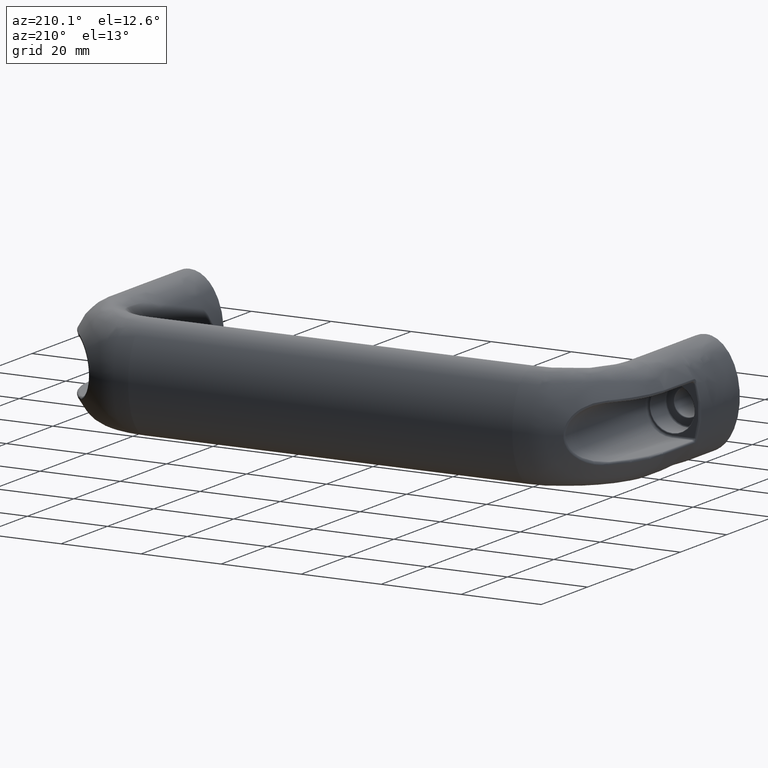
[diagram: clean part render]
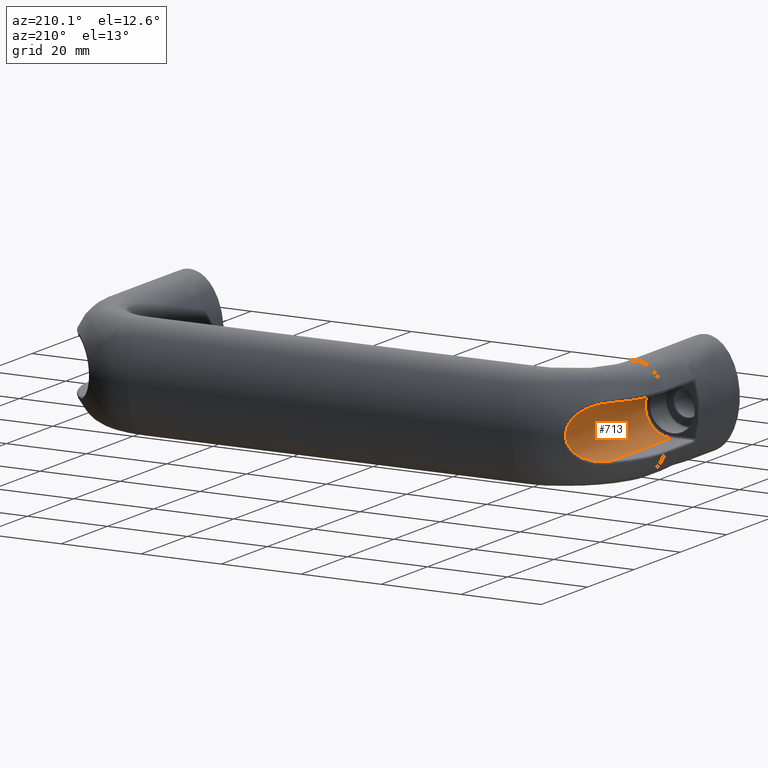
[diagram: same view with one face highlighted and labeled with its STEP entity id]
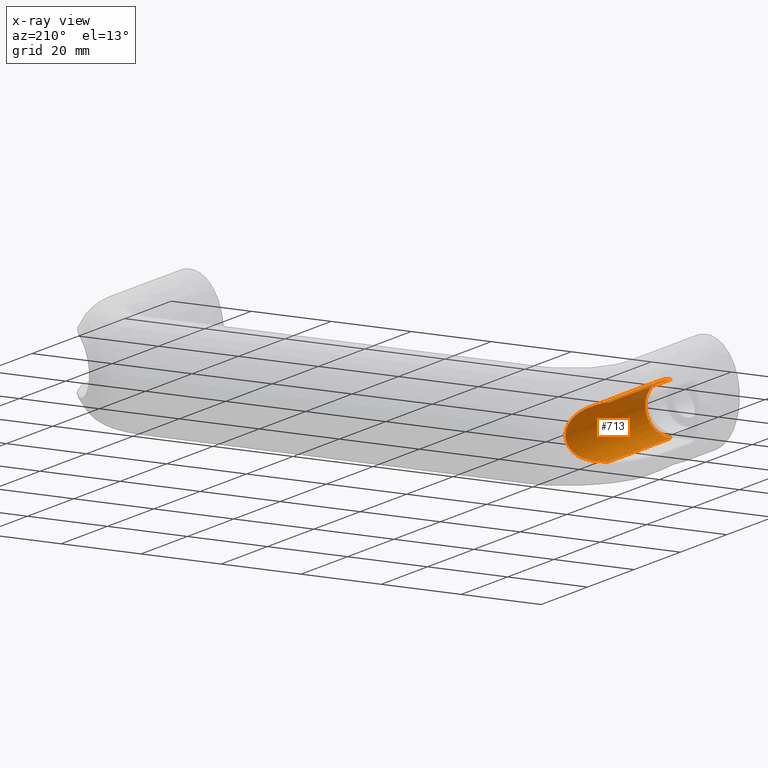
[diagram: x-ray of the same camera — body ghosted, the highlighted face saturated]
A machine part, auxiliary view. The second image highlights one B-rep face of the part: STEP entity #713.
The next image is the same camera in x-ray: the body ghosted, the highlighted face saturated — about 2% of this face is hidden behind the body in this view.
In plain terms, the highlighted cylindrical surface (edge-blend (fillet) strip) has radius 6.5 mm, axis along (0, -1, 0).
Its self-contained STEP definition (entity closure, byte-faithful):
#51=CYLINDRICAL_SURFACE('',#799,6.5);
#71=LINE('',#1853,#93);
#72=LINE('',#1854,#94);
#93=VECTOR('',#985,27.0082159809617);
#94=VECTOR('',#986,27.0082159809616);
#150=CIRCLE('',#792,6.5);
#206=FACE_OUTER_BOUND('',#270,.T.);
#270=EDGE_LOOP('',(#639,#640,#641,#642));
#296=B_SPLINE_CURVE_WITH_KNOTS('',3,(#1725,#1726,#1727,#1728,#1729,#1730,
#1731,#1732,#1733,#1734,#1735,#1736),.UNSPECIFIED.,.F.,.F.,(4,1,1,1,1,1,
1,1,1,4),(1.97564055588136E-11,0.391019060009874,0.782038119999992,0.977547649995051,
1.17305717999011,1.36856670998517,1.56407623998023,1.95509529997035,2.34611435996046,
2.73713341995058),.UNSPECIFIED.);
#362=VERTEX_POINT('',#1625);
#364=VERTEX_POINT('',#1710);
#368=VERTEX_POINT('',#1784);
#369=VERTEX_POINT('',#1788);
#450=EDGE_CURVE('',#362,#364,#296,.T.);
#459=EDGE_CURVE('',#369,#368,#150,.T.);
#466=EDGE_CURVE('',#362,#368,#71,.T.);
#467=EDGE_CURVE('',#364,#369,#72,.T.);
#639=ORIENTED_EDGE('',*,*,#450,.F.);
#640=ORIENTED_EDGE('',*,*,#466,.T.);
#641=ORIENTED_EDGE('',*,*,#459,.F.);
#642=ORIENTED_EDGE('',*,*,#467,.F.);
#713=ADVANCED_FACE('',(#206),#51,.F.);
#792=AXIS2_PLACEMENT_3D('',#1790,#968,#969);
#799=AXIS2_PLACEMENT_3D('',#1852,#983,#984);
#968=DIRECTION('center_axis',(0.,1.,0.));
#969=DIRECTION('ref_axis',(1.,0.,6.12323399573677E-17));
#983=DIRECTION('center_axis',(0.,-1.,0.));
#984=DIRECTION('ref_axis',(0.,0.,1.));
#985=DIRECTION('',(0.,-1.,0.));
#986=DIRECTION('',(0.,-1.,0.));
#1625=CARTESIAN_POINT('',(-1.50000000008954,44.5082159809617,-6.49999999999999));
#1710=CARTESIAN_POINT('',(-1.50000000008314,44.5082159809616,6.50000000000001));
#1725=CARTESIAN_POINT('Ctrl Pts',(-1.50000000015185,44.5082159809809,-6.49999999999999));
#1726=CARTESIAN_POINT('Ctrl Pts',(-0.740484069630414,45.5230150583374,-6.50000000001773));
#1727=CARTESIAN_POINT('Ctrl Pts',(0.845365398729657,47.4931298537762,-6.23737313945735));
#1728=CARTESIAN_POINT('Ctrl Pts',(2.82405065529755,49.6821524903435,-5.03274250313977));
#1729=CARTESIAN_POINT('Ctrl Pts',(4.12803536278178,51.0290334023682,-3.38894695129003));
#1730=CARTESIAN_POINT('Ctrl Pts',(4.82559276352372,51.7226123216022,-1.81319304844819));
#1731=CARTESIAN_POINT('Ctrl Pts',(5.08755290926589,51.9765755176658,-0.00305381178131432));
#1732=CARTESIAN_POINT('Ctrl Pts',(4.73882527025601,51.6385104777716,2.4260457944757));
#1733=CARTESIAN_POINT('Ctrl Pts',(3.21511294266645,50.1166677076651,4.80533565513443));
#1734=CARTESIAN_POINT('Ctrl Pts',(0.849029467216684,47.4959823149972,6.23083305477748));
#1735=CARTESIAN_POINT('Ctrl Pts',(-0.740484069645094,45.5230150583188,6.50000000001944));
#1736=CARTESIAN_POINT('Ctrl Pts',(-1.50000000016629,44.5082159809616,6.50000000000001));
#1784=CARTESIAN_POINT('',(-1.5,17.5,-6.49999999999999));
#1788=CARTESIAN_POINT('',(-1.5,17.5,6.50000000000001));
#1790=CARTESIAN_POINT('Origin',(-1.5,17.5,9.95025524307224E-15));
#1852=CARTESIAN_POINT('Origin',(-1.5,55.,9.95025524307224E-15));
#1853=CARTESIAN_POINT('',(-1.5,55.,-6.49999999999999));
#1854=CARTESIAN_POINT('',(-1.5,55.,6.50000000000001));